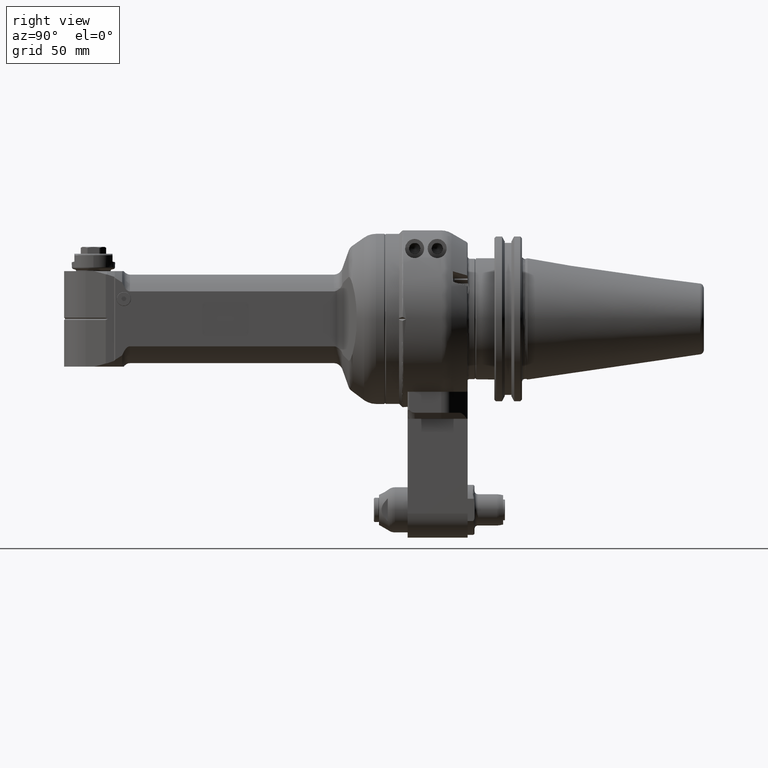
[diagram: clean part render]
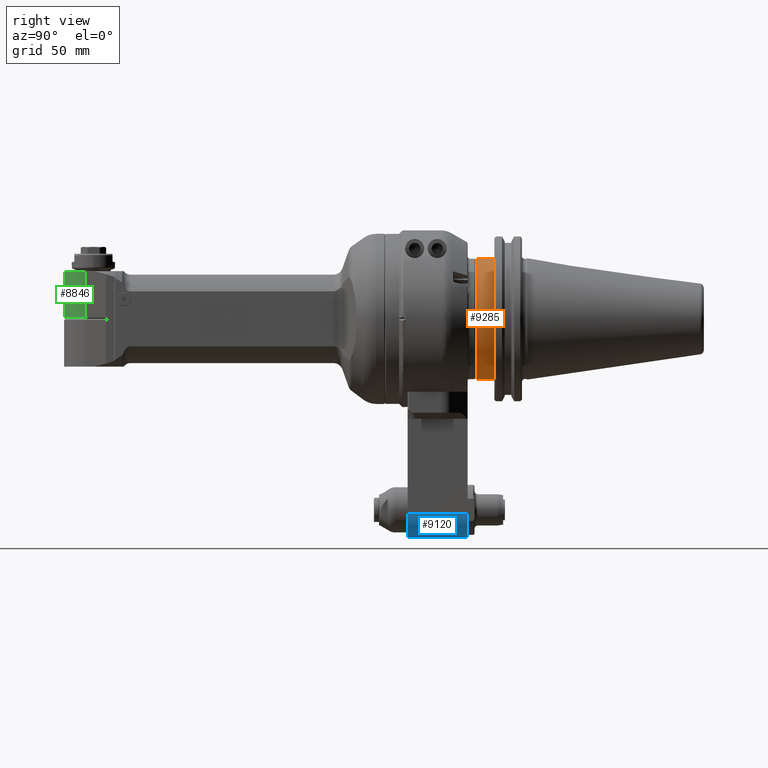
[diagram: same view with three faces highlighted in distinct colors, each labeled with its STEP entity id]
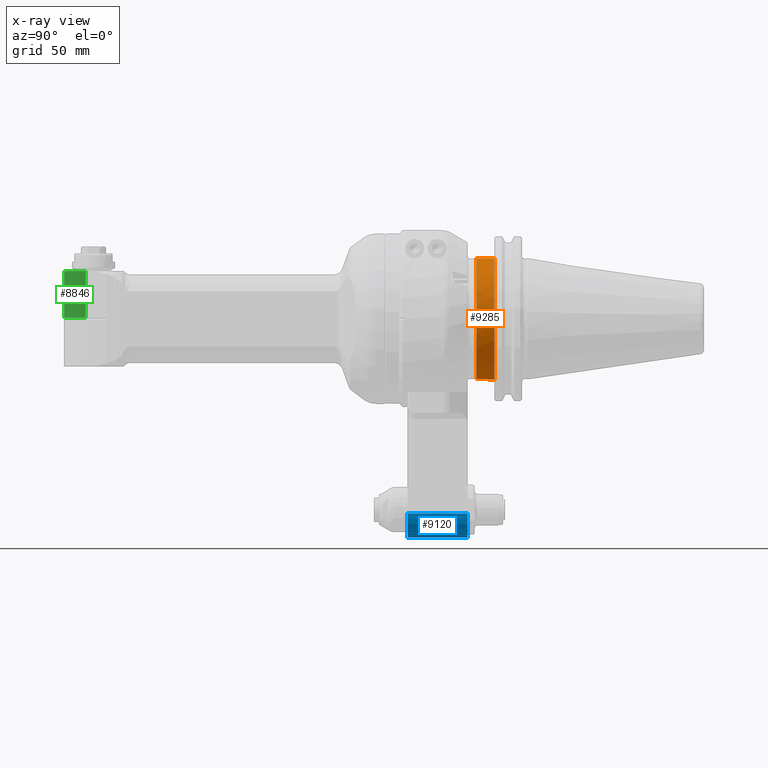
[diagram: x-ray of the same camera — body ghosted, the three highlighted faces saturated]
A machine part, right view with three faces highlighted in distinct colors.
The next image is the same camera in x-ray (body ghosted, the three faces saturated) — at least one of them is partly hidden behind the body in this view.
Their STEP definitions:

[orange] entity #9285 — the highlighted cylindrical surface (bore or boss wall) has radius 34.925 mm, axis along (0, -1, 0).
#1202=FACE_OUTER_BOUND('',#1830,.T.);
#1830=EDGE_LOOP('',(#8302,#8303,#8304,#8305,#8306));
#2425=LINE('',#17057,#3021);
#3021=VECTOR('',#13092,34.925);
#3612=CIRCLE('',#10423,34.925);
#3613=CIRCLE('',#10424,34.925);
#3614=CIRCLE('',#10426,34.925);
#4456=VERTEX_POINT('',#17050);
#4457=VERTEX_POINT('',#17051);
#4458=VERTEX_POINT('',#17056);
#5759=EDGE_CURVE('',#4456,#4457,#3612,.T.);
#5761=EDGE_CURVE('',#4457,#4456,#3613,.T.);
#5762=EDGE_CURVE('',#4456,#4458,#2425,.T.);
#5763=EDGE_CURVE('',#4458,#4458,#3614,.T.);
#8302=ORIENTED_EDGE('',*,*,#5759,.F.);
#8303=ORIENTED_EDGE('',*,*,#5762,.T.);
#8304=ORIENTED_EDGE('',*,*,#5763,.F.);
#8305=ORIENTED_EDGE('',*,*,#5762,.F.);
#8306=ORIENTED_EDGE('',*,*,#5761,.F.);
#8783=CYLINDRICAL_SURFACE('',#10425,34.925);
#9285=ADVANCED_FACE('',(#1202),#8783,.T.);
#10423=AXIS2_PLACEMENT_3D('',#17052,#13085,#13086);
#10424=AXIS2_PLACEMENT_3D('',#17054,#13088,#13089);
#10425=AXIS2_PLACEMENT_3D('',#17055,#13090,#13091);
#10426=AXIS2_PLACEMENT_3D('',#17058,#13093,#13094);
#13085=DIRECTION('center_axis',(0.,-1.,0.));
#13086=DIRECTION('ref_axis',(1.,0.,0.));
#13088=DIRECTION('center_axis',(0.,-1.,0.));
#13089=DIRECTION('ref_axis',(1.,0.,0.));
#13090=DIRECTION('center_axis',(0.,-1.,0.));
#13091=DIRECTION('ref_axis',(0.,0.,-1.));
#13092=DIRECTION('',(0.,1.,0.));
#13093=DIRECTION('center_axis',(0.,1.,0.));
#13094=DIRECTION('ref_axis',(0.,0.,-1.));
#17050=CARTESIAN_POINT('',(0.,44.5,34.925));
#17051=CARTESIAN_POINT('',(34.925,44.5,-4.27707894602213E-15));
#17052=CARTESIAN_POINT('Origin',(0.,44.5,0.));
#17054=CARTESIAN_POINT('Origin',(0.,44.5,0.));
#17055=CARTESIAN_POINT('Origin',(0.,42.,0.));
#17056=CARTESIAN_POINT('',(0.,54.95,34.925));
#17057=CARTESIAN_POINT('',(-4.27707894602213E-15,42.,34.925));
#17058=CARTESIAN_POINT('Origin',(0.,54.95,0.));

[blue] entity #9120 — the highlighted cylindrical surface (edge-blend (fillet) strip) has radius 14 mm, axis along (0, 1, 0).
#1037=FACE_OUTER_BOUND('',#1643,.T.);
#1643=EDGE_LOOP('',(#7537,#7538,#7539,#7540));
#2253=LINE('',#16211,#2849);
#2254=LINE('',#16213,#2850);
#2849=VECTOR('',#12250,34.5);
#2850=VECTOR('',#12253,34.5);
#3348=CIRCLE('',#9916,14.);
#3443=CIRCLE('',#10086,14.);
#4071=VERTEX_POINT('',#15333);
#4072=VERTEX_POINT('',#15335);
#4226=VERTEX_POINT('',#16195);
#4227=VERTEX_POINT('',#16197);
#5163=EDGE_CURVE('',#4071,#4072,#3348,.T.);
#5391=EDGE_CURVE('',#4226,#4227,#3443,.T.);
#5397=EDGE_CURVE('',#4071,#4227,#2253,.T.);
#5398=EDGE_CURVE('',#4226,#4072,#2254,.T.);
#7537=ORIENTED_EDGE('',*,*,#5398,.T.);
#7538=ORIENTED_EDGE('',*,*,#5163,.F.);
#7539=ORIENTED_EDGE('',*,*,#5397,.T.);
#7540=ORIENTED_EDGE('',*,*,#5391,.F.);
#8738=CYLINDRICAL_SURFACE('',#10091,14.);
#9120=ADVANCED_FACE('',(#1037),#8738,.T.);
#9916=AXIS2_PLACEMENT_3D('',#15336,#11812,#11813);
#10086=AXIS2_PLACEMENT_3D('',#16198,#12237,#12238);
#10091=AXIS2_PLACEMENT_3D('',#16212,#12251,#12252);
#11812=DIRECTION('center_axis',(0.,1.,0.));
#11813=DIRECTION('ref_axis',(1.,0.,0.));
#12237=DIRECTION('center_axis',(0.,-1.,0.));
#12238=DIRECTION('ref_axis',(0.,0.,-1.));
#12250=DIRECTION('',(0.,-1.,0.));
#12251=DIRECTION('center_axis',(0.,1.,0.));
#12252=DIRECTION('ref_axis',(0.,0.,1.));
#12253=DIRECTION('',(0.,1.,0.));
#15333=CARTESIAN_POINT('',(15.,39.5,-112.));
#15335=CARTESIAN_POINT('',(1.,39.5,-126.));
#15336=CARTESIAN_POINT('Origin',(1.,39.5,-112.));
#16195=CARTESIAN_POINT('',(1.,5.,-126.));
#16197=CARTESIAN_POINT('',(15.,5.,-112.));
#16198=CARTESIAN_POINT('Origin',(1.,5.,-112.));
#16211=CARTESIAN_POINT('',(15.,39.5,-112.));
#16212=CARTESIAN_POINT('Origin',(1.,31.,-112.));
#16213=CARTESIAN_POINT('',(1.,5.,-126.));

[green] entity #8846 — the highlighted cylindrical surface (edge-blend (fillet) strip) has radius 17 mm, axis along (-0, 0, -1).
#763=FACE_OUTER_BOUND('',#1321,.T.);
#1321=EDGE_LOOP('',(#6186,#6187,#6188,#6189));
#1950=LINE('',#14030,#2546);
#1955=LINE('',#14049,#2551);
#2546=VECTOR('',#10803,26.83431457505);
#2551=VECTOR('',#10822,26.83431457505);
#3153=CIRCLE('',#9513,17.);
#3157=CIRCLE('',#9523,17.);
#3777=VERTEX_POINT('',#14002);
#3778=VERTEX_POINT('',#14004);
#3783=VERTEX_POINT('',#14028);
#3786=VERTEX_POINT('',#14043);
#4702=EDGE_CURVE('',#3777,#3778,#3153,.T.);
#4712=EDGE_CURVE('',#3777,#3783,#1950,.T.);
#4718=EDGE_CURVE('',#3786,#3783,#3157,.T.);
#4721=EDGE_CURVE('',#3786,#3778,#1955,.T.);
#6186=ORIENTED_EDGE('',*,*,#4718,.F.);
#6187=ORIENTED_EDGE('',*,*,#4721,.T.);
#6188=ORIENTED_EDGE('',*,*,#4702,.F.);
#6189=ORIENTED_EDGE('',*,*,#4712,.T.);
#8650=CYLINDRICAL_SURFACE('',#9525,17.);
#8846=ADVANCED_FACE('',(#763),#8650,.T.);
#9513=AXIS2_PLACEMENT_3D('',#14005,#10789,#10790);
#9523=AXIS2_PLACEMENT_3D('',#14044,#10815,#10816);
#9525=AXIS2_PLACEMENT_3D('',#14048,#10820,#10821);
#10789=DIRECTION('center_axis',(0.,-1.,0.));
#10790=DIRECTION('ref_axis',(0.258819045102493,0.,-0.965925826289076));
#10803=DIRECTION('',(0.,1.,0.));
#10815=DIRECTION('center_axis',(0.,1.,0.));
#10816=DIRECTION('ref_axis',(0.258819045102493,0.,0.965925826289076));
#10820=DIRECTION('center_axis',(0.,1.,0.));
#10821=DIRECTION('ref_axis',(1.,0.,1.22464679914735E-16));
#10822=DIRECTION('',(0.,-1.,0.));
#14002=CARTESIAN_POINT('',(211.3999237667,-27.5,-16.42073904691));
#14004=CARTESIAN_POINT('',(211.3999237667,-27.5,16.42073904691));
#14005=CARTESIAN_POINT('Origin',(207.,-27.5,0.));
#14028=CARTESIAN_POINT('',(211.3999237667,-0.6656854249492,-16.42073904691));
#14030=CARTESIAN_POINT('',(211.3999237667,-27.5,-16.42073904691));
#14043=CARTESIAN_POINT('',(211.3999237667,-0.6656854249492,16.42073904691));
#14044=CARTESIAN_POINT('Origin',(207.,-0.6656854249492,0.));
#14048=CARTESIAN_POINT('Origin',(207.,-66.95199937934,0.));
#14049=CARTESIAN_POINT('',(211.3999237667,-0.6656854249492,16.42073904691));